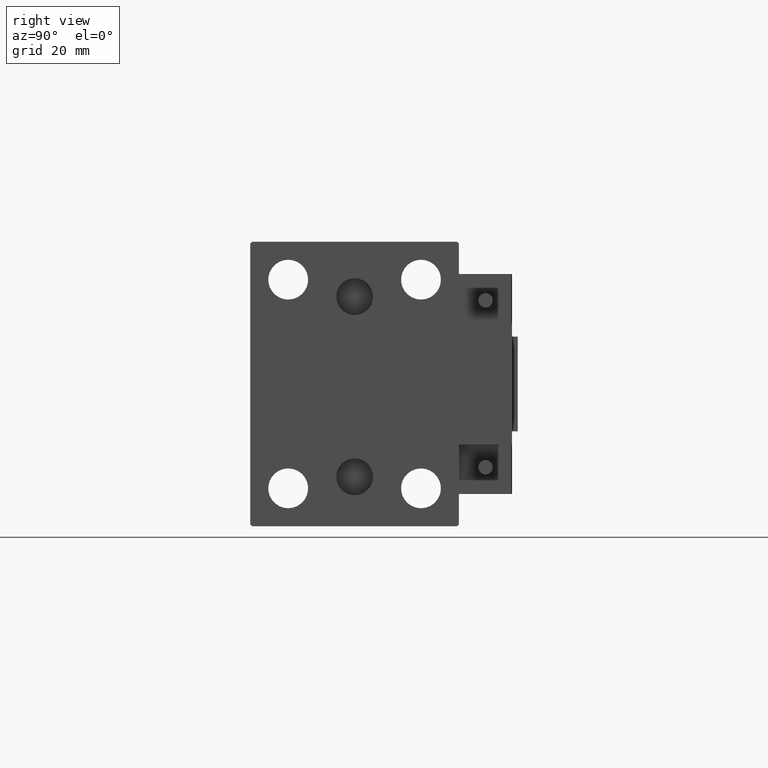
[diagram: clean part render]
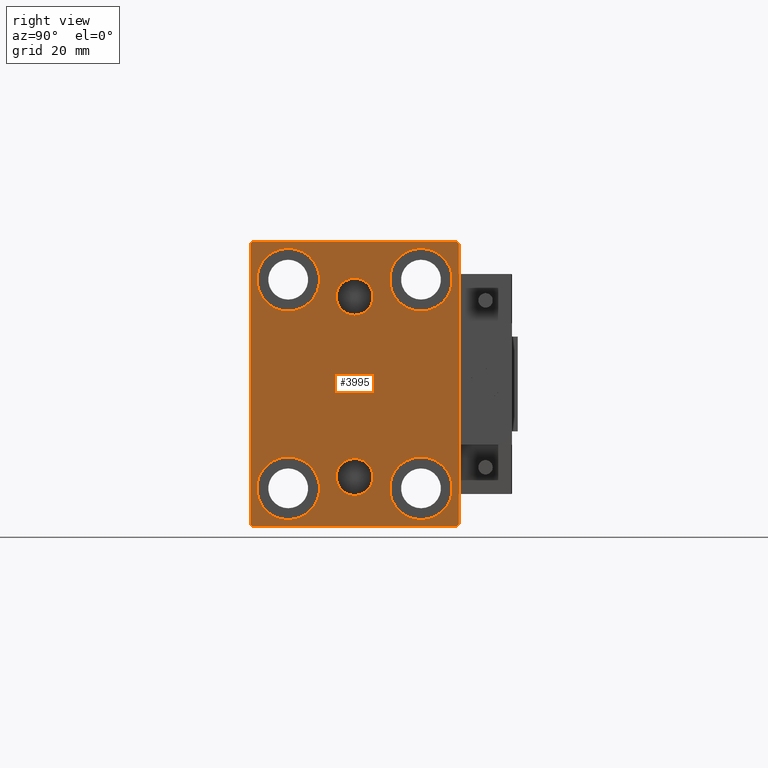
[diagram: same view with one face highlighted and labeled with its STEP entity id]
A machine part, right view. The second image highlights one B-rep face of the part: STEP entity #3995.
In plain terms, the highlighted planar face has unit normal (1, 0, 0).
Its self-contained STEP definition (entity closure, byte-faithful):
#202 = EDGE_CURVE ( 'NONE', #14756, #10908, #27126, .T. ) ;
#459 = VECTOR ( 'NONE', #8467, 1000.000000000000000 ) ;
#593 = CARTESIAN_POINT ( 'NONE',  ( 65.00000000000000000, -27.00000000000000355, -37.50000000000000000 ) ) ;
#873 = CARTESIAN_POINT ( 'NONE',  ( 65.00000000000000000, -17.49999999999999645, 27.49999999999999645 ) ) ;
#986 = CIRCLE ( 'NONE', #30993, 8.249999999999992895 ) ;
#1150 = LINE ( 'NONE', #40261, #459 ) ;
#1607 = DIRECTION ( 'NONE',  ( 0.000000000000000000, 0.000000000000000000, 1.000000000000000000 ) ) ;
#2163 = DIRECTION ( 'NONE',  ( -1.000000000000000000, -0.000000000000000000, -0.000000000000000000 ) ) ;
#2609 = EDGE_CURVE ( 'NONE', #51127, #22926, #6209, .T. ) ;
#3332 = CARTESIAN_POINT ( 'NONE',  ( 65.00000000000000000, -27.50000000000000355, 37.50000000000000000 ) ) ;
#3336 = DIRECTION ( 'NONE',  ( -1.000000000000000000, -0.000000000000000000, -0.000000000000000000 ) ) ;
#3995 = ADVANCED_FACE ( 'NONE', ( #22015, #41549, #38155, #10011, #26432, #38661, #10542 ), #29551, .T. ) ;
#4157 = ORIENTED_EDGE ( 'NONE', *, *, #36154, .T. ) ;
#4631 = CIRCLE ( 'NONE', #44628, 8.249999999999992895 ) ;
#4972 = VERTEX_POINT ( 'NONE', #7637 ) ;
#5115 = VECTOR ( 'NONE', #51201, 1000.000000000000000 ) ;
#5193 = VERTEX_POINT ( 'NONE', #29662 ) ;
#5414 = AXIS2_PLACEMENT_3D ( 'NONE', #49187, #41607, #5631 ) ;
#5489 = ORIENTED_EDGE ( 'NONE', *, *, #38059, .T. ) ;
#5631 = DIRECTION ( 'NONE',  ( 0.000000000000000000, 0.000000000000000000, -1.000000000000000000 ) ) ;
#6006 = DIRECTION ( 'NONE',  ( -1.000000000000000000, -0.000000000000000000, -0.000000000000000000 ) ) ;
#6209 = LINE ( 'NONE', #42189, #34212 ) ;
#6266 = CARTESIAN_POINT ( 'NONE',  ( 65.00000000000000000, 17.49999999999999645, -27.50000000000000355 ) ) ;
#6412 = ORIENTED_EDGE ( 'NONE', *, *, #9847, .T. ) ;
#6730 = VERTEX_POINT ( 'NONE', #14610 ) ;
#6993 = VERTEX_POINT ( 'NONE', #48983 ) ;
#7450 = ORIENTED_EDGE ( 'NONE', *, *, #202, .T. ) ;
#7637 = CARTESIAN_POINT ( 'NONE',  ( 65.00000000000000000, -3.571693674697836683E-15, 18.14000000000000767 ) ) ;
#7872 = ORIENTED_EDGE ( 'NONE', *, *, #30981, .F. ) ;
#8467 = DIRECTION ( 'NONE',  ( 0.000000000000000000, 1.000000000000000000, 0.000000000000000000 ) ) ;
#8825 = CARTESIAN_POINT ( 'NONE',  ( 65.00000000000000000, 27.50000000000000355, -37.00000000000000000 ) ) ;
#9598 = VECTOR ( 'NONE', #39745, 1000.000000000000000 ) ;
#9847 = EDGE_CURVE ( 'NONE', #34820, #28770, #4631, .T. ) ;
#9870 = CIRCLE ( 'NONE', #43181, 8.250000000000000000 ) ;
#9964 = VERTEX_POINT ( 'NONE', #11249 ) ;
#10011 = FACE_BOUND ( 'NONE', #30179, .T. ) ;
#10287 = AXIS2_PLACEMENT_3D ( 'NONE', #42337, #49386, #13935 ) ;
#10395 = ORIENTED_EDGE ( 'NONE', *, *, #23521, .T. ) ;
#10542 = FACE_OUTER_BOUND ( 'NONE', #25768, .T. ) ;
#10908 = VERTEX_POINT ( 'NONE', #33810 ) ;
#10981 = DIRECTION ( 'NONE',  ( 0.000000000000000000, 0.000000000000000000, 1.000000000000000000 ) ) ;
#11201 = DIRECTION ( 'NONE',  ( 0.000000000000000000, 0.000000000000000000, 1.000000000000000000 ) ) ;
#11249 = CARTESIAN_POINT ( 'NONE',  ( 65.00000000000000000, 3.595563002296627957E-15, -19.63999999999999346 ) ) ;
#11830 = VECTOR ( 'NONE', #43562, 1000.000000000000114 ) ;
#11888 = EDGE_LOOP ( 'NONE', ( #6412, #50353 ) ) ;
#12023 = AXIS2_PLACEMENT_3D ( 'NONE', #6266, #6006, #37296 ) ;
#12190 = CARTESIAN_POINT ( 'NONE',  ( 65.00000000000000000, 32.25000000000019185, 32.24999999999975131 ) ) ;
#12383 = DIRECTION ( 'NONE',  ( -1.000000000000000000, -0.000000000000000000, -0.000000000000000000 ) ) ;
#12802 = VERTEX_POINT ( 'NONE', #27867 ) ;
#13471 = ORIENTED_EDGE ( 'NONE', *, *, #2609, .T. ) ;
#13543 = DIRECTION ( 'NONE',  ( -1.000000000000000000, -0.000000000000000000, -0.000000000000000000 ) ) ;
#13935 = DIRECTION ( 'NONE',  ( 0.000000000000000000, 0.000000000000000000, -1.000000000000000000 ) ) ;
#14049 = ORIENTED_EDGE ( 'NONE', *, *, #25732, .T. ) ;
#14610 = CARTESIAN_POINT ( 'NONE',  ( 65.00000000000000000, -17.50000000000000355, -19.25000000000000355 ) ) ;
#14756 = VERTEX_POINT ( 'NONE', #38437 ) ;
#15153 = AXIS2_PLACEMENT_3D ( 'NONE', #43318, #34270, #44085 ) ;
#17270 = ORIENTED_EDGE ( 'NONE', *, *, #35553, .T. ) ;
#17287 = EDGE_CURVE ( 'NONE', #6993, #17746, #41446, .T. ) ;
#17660 = CIRCLE ( 'NONE', #15153, 4.859999999999999432 ) ;
#17746 = VERTEX_POINT ( 'NONE', #47857 ) ;
#18403 = DIRECTION ( 'NONE',  ( 0.000000000000000000, 0.000000000000000000, 1.000000000000000000 ) ) ;
#18724 = EDGE_CURVE ( 'NONE', #6730, #24619, #9870, .T. ) ;
#19377 = CARTESIAN_POINT ( 'NONE',  ( 65.00000000000000000, 17.49999999999999645, -19.25000000000000355 ) ) ;
#19584 = EDGE_CURVE ( 'NONE', #12802, #44339, #20935, .T. ) ;
#20420 = ORIENTED_EDGE ( 'NONE', *, *, #39209, .T. ) ;
#20935 = LINE ( 'NONE', #40718, #47336 ) ;
#21112 = CARTESIAN_POINT ( 'NONE',  ( 65.00000000000000000, 17.50000000000000355, 27.49999999999999645 ) ) ;
#21299 = ORIENTED_EDGE ( 'NONE', *, *, #37756, .T. ) ;
#22015 = FACE_BOUND ( 'NONE', #32191, .T. ) ;
#22217 = CARTESIAN_POINT ( 'NONE',  ( 65.00000000000000000, -17.49999999999999645, 27.49999999999999645 ) ) ;
#22661 = ORIENTED_EDGE ( 'NONE', *, *, #37859, .F. ) ;
#22926 = VERTEX_POINT ( 'NONE', #8825 ) ;
#22977 = ORIENTED_EDGE ( 'NONE', *, *, #27030, .F. ) ;
#23302 = CARTESIAN_POINT ( 'NONE',  ( 65.00000000000000000, 27.49999999999999645, 37.50000000000000711 ) ) ;
#23521 = EDGE_CURVE ( 'NONE', #37522, #35270, #29159, .T. ) ;
#23648 = DIRECTION ( 'NONE',  ( 0.000000000000000000, 0.000000000000000000, 1.000000000000000000 ) ) ;
#23868 = ORIENTED_EDGE ( 'NONE', *, *, #19584, .T. ) ;
#24064 = LINE ( 'NONE', #23302, #5115 ) ;
#24352 = CARTESIAN_POINT ( 'NONE',  ( 65.00000000000000000, 3.000384657911015074E-15, -29.35999999999999233 ) ) ;
#24356 = LINE ( 'NONE', #40253, #9598 ) ;
#24572 = VECTOR ( 'NONE', #40311, 1000.000000000000000 ) ;
#24619 = VERTEX_POINT ( 'NONE', #42062 ) ;
#25423 = DIRECTION ( 'NONE',  ( -1.000000000000000000, -0.000000000000000000, -0.000000000000000000 ) ) ;
#25637 = CARTESIAN_POINT ( 'NONE',  ( 65.00000000000000000, 17.49999999999999645, -27.50000000000000355 ) ) ;
#25732 = EDGE_CURVE ( 'NONE', #5193, #14756, #24064, .T. ) ;
#25768 = EDGE_LOOP ( 'NONE', ( #14049, #7450, #44969, #23868, #20420, #13471, #5489, #21299 ) ) ;
#26110 = DIRECTION ( 'NONE',  ( -1.000000000000000000, -0.000000000000000000, -0.000000000000000000 ) ) ;
#26270 = CIRCLE ( 'NONE', #5414, 4.859999999999999432 ) ;
#26432 = FACE_BOUND ( 'NONE', #11888, .T. ) ;
#27030 = EDGE_CURVE ( 'NONE', #36102, #9964, #17660, .T. ) ;
#27126 = LINE ( 'NONE', #42541, #11830 ) ;
#27372 = CARTESIAN_POINT ( 'NONE',  ( 65.00000000000000000, 27.49999999999999645, 37.00000000000001421 ) ) ;
#27867 = CARTESIAN_POINT ( 'NONE',  ( 65.00000000000000000, -27.50000000000000355, -37.00000000000000000 ) ) ;
#27884 = ORIENTED_EDGE ( 'NONE', *, *, #48357, .T. ) ;
#28551 = CARTESIAN_POINT ( 'NONE',  ( 65.00000000000000000, 17.50000000000000355, 19.25000000000000000 ) ) ;
#28770 = VERTEX_POINT ( 'NONE', #36443 ) ;
#28882 = VECTOR ( 'NONE', #43503, 1000.000000000000000 ) ;
#29159 = CIRCLE ( 'NONE', #47471, 8.250000000000000000 ) ;
#29413 = DIRECTION ( 'NONE',  ( 0.000000000000000000, 0.000000000000000000, 1.000000000000000000 ) ) ;
#29491 = CIRCLE ( 'NONE', #12023, 8.250000000000000000 ) ;
#29551 = PLANE ( 'NONE',  #10287 ) ;
#29662 = CARTESIAN_POINT ( 'NONE',  ( 65.00000000000000000, 27.00000000000001066, 37.50000000000000711 ) ) ;
#30179 = EDGE_LOOP ( 'NONE', ( #44370, #27884 ) ) ;
#30941 = EDGE_CURVE ( 'NONE', #28770, #34820, #986, .T. ) ;
#30981 = EDGE_CURVE ( 'NONE', #33202, #4972, #42674, .T. ) ;
#30993 = AXIS2_PLACEMENT_3D ( 'NONE', #21112, #13543, #29413 ) ;
#32191 = EDGE_LOOP ( 'NONE', ( #22661, #7872 ) ) ;
#33011 = LINE ( 'NONE', #12190, #24572 ) ;
#33076 = CARTESIAN_POINT ( 'NONE',  ( 65.00000000000000000, 17.49999999999999645, -35.75000000000000711 ) ) ;
#33080 = DIRECTION ( 'NONE',  ( 0.000000000000000000, 0.000000000000000000, -1.000000000000000000 ) ) ;
#33202 = VERTEX_POINT ( 'NONE', #43039 ) ;
#33274 = ORIENTED_EDGE ( 'NONE', *, *, #41747, .F. ) ;
#33666 = AXIS2_PLACEMENT_3D ( 'NONE', #33716, #2163, #46241 ) ;
#33716 = CARTESIAN_POINT ( 'NONE',  ( 65.00000000000000000, -17.50000000000000355, -27.50000000000000355 ) ) ;
#33810 = CARTESIAN_POINT ( 'NONE',  ( 65.00000000000000000, -27.50000000000000355, 37.00000000000001421 ) ) ;
#33927 = AXIS2_PLACEMENT_3D ( 'NONE', #22217, #3336, #11201 ) ;
#34212 = VECTOR ( 'NONE', #37757, 1000.000000000000114 ) ;
#34270 = DIRECTION ( 'NONE',  ( 1.000000000000000000, 0.000000000000000000, -0.000000000000000000 ) ) ;
#34820 = VERTEX_POINT ( 'NONE', #28551 ) ;
#34822 = AXIS2_PLACEMENT_3D ( 'NONE', #873, #12383, #36592 ) ;
#35270 = VERTEX_POINT ( 'NONE', #19377 ) ;
#35401 = LINE ( 'NONE', #3332, #28882 ) ;
#35553 = EDGE_CURVE ( 'NONE', #35270, #37522, #29491, .T. ) ;
#36102 = VERTEX_POINT ( 'NONE', #24352 ) ;
#36154 = EDGE_CURVE ( 'NONE', #24619, #6730, #36979, .T. ) ;
#36443 = CARTESIAN_POINT ( 'NONE',  ( 65.00000000000000000, 17.50000000000000355, 35.74999999999999289 ) ) ;
#36469 = CARTESIAN_POINT ( 'NONE',  ( 65.00000000000000000, -3.571693674697836683E-15, 23.00000000000000711 ) ) ;
#36592 = DIRECTION ( 'NONE',  ( 0.000000000000000000, 0.000000000000000000, 1.000000000000000000 ) ) ;
#36662 = VERTEX_POINT ( 'NONE', #27372 ) ;
#36979 = CIRCLE ( 'NONE', #33666, 8.250000000000000000 ) ;
#37296 = DIRECTION ( 'NONE',  ( 0.000000000000000000, 0.000000000000000000, 1.000000000000000000 ) ) ;
#37522 = VERTEX_POINT ( 'NONE', #33076 ) ;
#37756 = EDGE_CURVE ( 'NONE', #36662, #5193, #33011, .T. ) ;
#37757 = DIRECTION ( 'NONE',  ( -0.000000000000000000, 0.7071067811865474617, 0.7071067811865474617 ) ) ;
#37859 = EDGE_CURVE ( 'NONE', #4972, #33202, #26270, .T. ) ;
#38059 = EDGE_CURVE ( 'NONE', #22926, #36662, #24356, .T. ) ;
#38093 = CARTESIAN_POINT ( 'NONE',  ( 65.00000000000000000, 17.50000000000000355, 27.49999999999999645 ) ) ;
#38155 = FACE_BOUND ( 'NONE', #38159, .T. ) ;
#38159 = EDGE_LOOP ( 'NONE', ( #10395, #17270 ) ) ;
#38437 = CARTESIAN_POINT ( 'NONE',  ( 65.00000000000000000, -27.00000000000001776, 37.50000000000000000 ) ) ;
#38661 = FACE_BOUND ( 'NONE', #48878, .T. ) ;
#39209 = EDGE_CURVE ( 'NONE', #44339, #51127, #1150, .T. ) ;
#39745 = DIRECTION ( 'NONE',  ( 0.000000000000000000, -9.251858538542970348E-17, 1.000000000000000000 ) ) ;
#40082 = ORIENTED_EDGE ( 'NONE', *, *, #18724, .T. ) ;
#40253 = CARTESIAN_POINT ( 'NONE',  ( 65.00000000000000000, 27.50000000000000355, -37.50000000000000000 ) ) ;
#40261 = CARTESIAN_POINT ( 'NONE',  ( 65.00000000000000000, -27.50000000000000355, -37.50000000000000000 ) ) ;
#40311 = DIRECTION ( 'NONE',  ( -0.000000000000000000, -0.7071067811865426878, 0.7071067811865524577 ) ) ;
#40718 = CARTESIAN_POINT ( 'NONE',  ( 65.00000000000000000, -32.25000000000000000, -32.25000000000000000 ) ) ;
#40960 = AXIS2_PLACEMENT_3D ( 'NONE', #36469, #45351, #33080 ) ;
#41446 = CIRCLE ( 'NONE', #33927, 8.249999999999992895 ) ;
#41532 = DIRECTION ( 'NONE',  ( -1.000000000000000000, -0.000000000000000000, -0.000000000000000000 ) ) ;
#41549 = FACE_BOUND ( 'NONE', #48672, .T. ) ;
#41607 = DIRECTION ( 'NONE',  ( 1.000000000000000000, 0.000000000000000000, 0.000000000000000000 ) ) ;
#41747 = EDGE_CURVE ( 'NONE', #9964, #36102, #44615, .T. ) ;
#42062 = CARTESIAN_POINT ( 'NONE',  ( 65.00000000000000000, -17.50000000000000355, -35.75000000000000711 ) ) ;
#42189 = CARTESIAN_POINT ( 'NONE',  ( 65.00000000000000000, 32.25000000000000000, -32.25000000000000000 ) ) ;
#42337 = CARTESIAN_POINT ( 'NONE',  ( 65.00000000000000000, 0.000000000000000000, 0.000000000000000000 ) ) ;
#42541 = CARTESIAN_POINT ( 'NONE',  ( 65.00000000000000000, -32.25000000000000711, 32.25000000000000711 ) ) ;
#42674 = CIRCLE ( 'NONE', #40960, 4.859999999999999432 ) ;
#42717 = CARTESIAN_POINT ( 'NONE',  ( 65.00000000000000000, 3.000384657911015074E-15, -24.49999999999999289 ) ) ;
#43039 = CARTESIAN_POINT ( 'NONE',  ( 65.00000000000000000, -2.976515330312223406E-15, 27.86000000000000654 ) ) ;
#43181 = AXIS2_PLACEMENT_3D ( 'NONE', #49675, #25423, #18403 ) ;
#43318 = CARTESIAN_POINT ( 'NONE',  ( 65.00000000000000000, 3.000384657911015074E-15, -24.49999999999999289 ) ) ;
#43503 = DIRECTION ( 'NONE',  ( 0.000000000000000000, 0.000000000000000000, -1.000000000000000000 ) ) ;
#43562 = DIRECTION ( 'NONE',  ( 0.000000000000000000, -0.7071067811865474617, -0.7071067811865474617 ) ) ;
#43729 = DIRECTION ( 'NONE',  ( 1.000000000000000000, 0.000000000000000000, -0.000000000000000000 ) ) ;
#44085 = DIRECTION ( 'NONE',  ( 0.000000000000000000, 0.000000000000000000, 1.000000000000000000 ) ) ;
#44339 = VERTEX_POINT ( 'NONE', #593 ) ;
#44370 = ORIENTED_EDGE ( 'NONE', *, *, #17287, .T. ) ;
#44615 = CIRCLE ( 'NONE', #51388, 4.859999999999999432 ) ;
#44628 = AXIS2_PLACEMENT_3D ( 'NONE', #38093, #26110, #1607 ) ;
#44969 = ORIENTED_EDGE ( 'NONE', *, *, #45680, .T. ) ;
#45351 = DIRECTION ( 'NONE',  ( 1.000000000000000000, 0.000000000000000000, 0.000000000000000000 ) ) ;
#45680 = EDGE_CURVE ( 'NONE', #10908, #12802, #35401, .T. ) ;
#46136 = CARTESIAN_POINT ( 'NONE',  ( 65.00000000000000000, 27.00000000000000355, -37.50000000000000000 ) ) ;
#46241 = DIRECTION ( 'NONE',  ( 0.000000000000000000, 0.000000000000000000, 1.000000000000000000 ) ) ;
#47336 = VECTOR ( 'NONE', #49080, 1000.000000000000114 ) ;
#47471 = AXIS2_PLACEMENT_3D ( 'NONE', #25637, #41532, #10981 ) ;
#47857 = CARTESIAN_POINT ( 'NONE',  ( 65.00000000000000000, -17.49999999999999645, 35.74999999999999289 ) ) ;
#48357 = EDGE_CURVE ( 'NONE', #17746, #6993, #49819, .T. ) ;
#48672 = EDGE_LOOP ( 'NONE', ( #22977, #33274 ) ) ;
#48878 = EDGE_LOOP ( 'NONE', ( #4157, #40082 ) ) ;
#48983 = CARTESIAN_POINT ( 'NONE',  ( 65.00000000000000000, -17.49999999999999645, 19.25000000000000000 ) ) ;
#49080 = DIRECTION ( 'NONE',  ( -0.000000000000000000, 0.7071067811865474617, -0.7071067811865474617 ) ) ;
#49187 = CARTESIAN_POINT ( 'NONE',  ( 65.00000000000000000, -3.571693674697836683E-15, 23.00000000000000711 ) ) ;
#49386 = DIRECTION ( 'NONE',  ( 1.000000000000000000, 0.000000000000000000, 0.000000000000000000 ) ) ;
#49675 = CARTESIAN_POINT ( 'NONE',  ( 65.00000000000000000, -17.50000000000000355, -27.50000000000000355 ) ) ;
#49819 = CIRCLE ( 'NONE', #34822, 8.249999999999992895 ) ;
#50353 = ORIENTED_EDGE ( 'NONE', *, *, #30941, .T. ) ;
#51127 = VERTEX_POINT ( 'NONE', #46136 ) ;
#51201 = DIRECTION ( 'NONE',  ( 0.000000000000000000, -1.000000000000000000, -1.261617073437677999E-16 ) ) ;
#51388 = AXIS2_PLACEMENT_3D ( 'NONE', #42717, #43729, #23648 ) ;